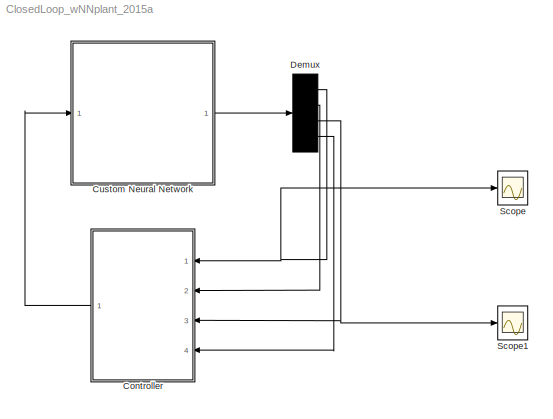
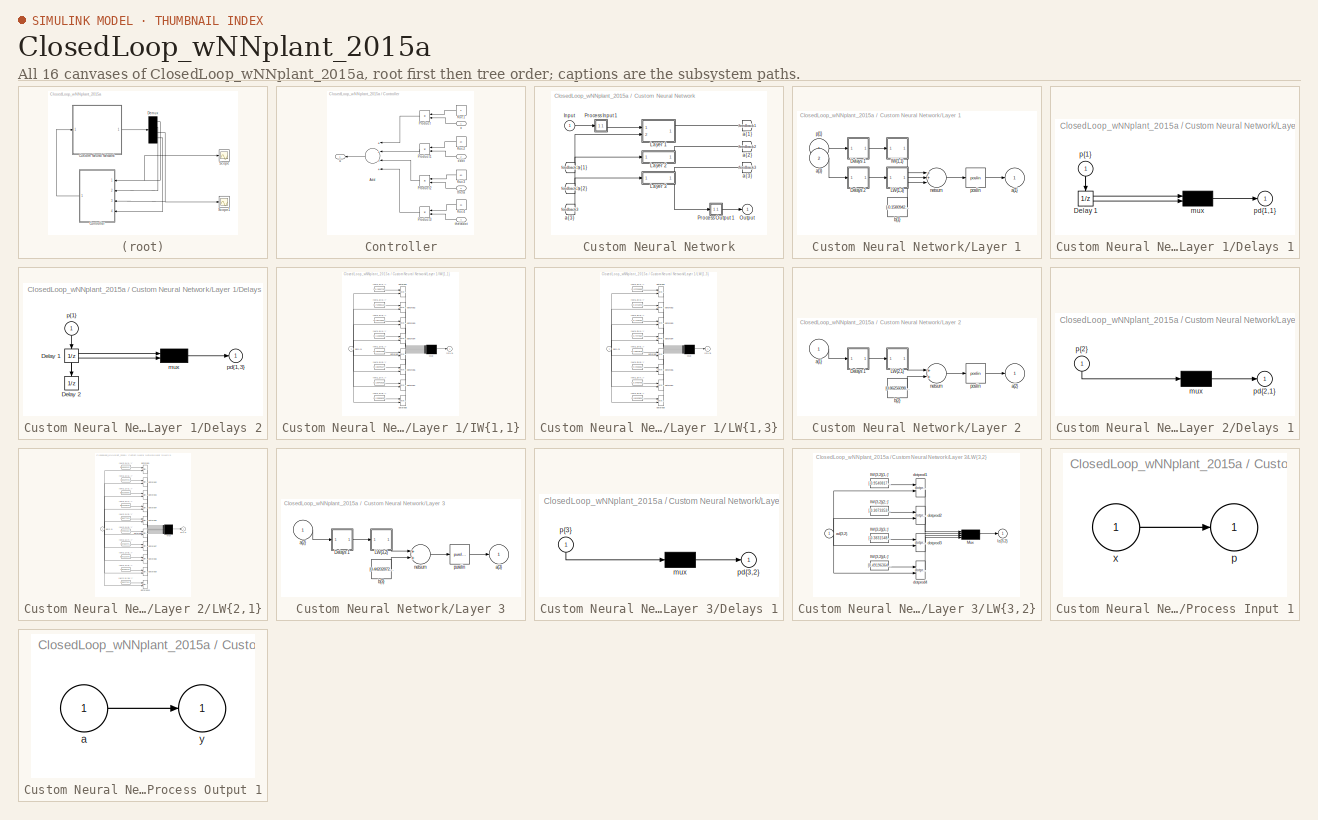
[diagram: thumbnail index - all 16 canvases of the model, root first then tree order]
MODEL ClosedLoop_wNNplant_2015a
KIND model
BLOCK [SubSystem] Controller
  Ports = [4, 1]
  RequestExecContextInheritance = off
  SID = 68
BLOCK [Sum] Controller/Add
  InputSameDT = off
  Inputs = ++++
  OutDataTypeStr = Inherit: Inherit via internal rule
  Ports = [4, 1]
  SID = 73
  SaturateOnIntegerOverflow = off
BLOCK [Constant] Controller/Ksc1
  SID = 74
  Value = 6
BLOCK [Constant] Controller/Ksc2
  SID = 75
  Value = 20
BLOCK [Constant] Controller/Ksc3
  SID = 76
  Value = 60
BLOCK [Constant] Controller/Ksc4
  SID = 77
  Value = 16
BLOCK [Product] Controller/Product
  InputSameDT = off
  OutDataTypeStr = Inherit: Inherit via internal rule
  Ports = [2, 1]
  RndMeth = Floor
  SID = 78
  SaturateOnIntegerOverflow = off
BLOCK [Product] Controller/Product1
  InputSameDT = off
  OutDataTypeStr = Inherit: Inherit via internal rule
  Ports = [2, 1]
  RndMeth = Floor
  SID = 79
  SaturateOnIntegerOverflow = off
BLOCK [Product] Controller/Product2
  InputSameDT = off
  OutDataTypeStr = Inherit: Inherit via internal rule
  Ports = [2, 1]
  RndMeth = Floor
  SID = 80
  SaturateOnIntegerOverflow = off
BLOCK [Product] Controller/Product3
  InputSameDT = off
  OutDataTypeStr = Inherit: Inherit via internal rule
  Ports = [2, 1]
  RndMeth = Floor
  SID = 81
  SaturateOnIntegerOverflow = off
BLOCK [Inport] Controller/theta
  IconDisplay = Port number
  Port = 3
  SID = 71
BLOCK [Inport] Controller/thetadot
  IconDisplay = Port number
  Port = 4
  SID = 72
BLOCK [Outport] Controller/u
  IconDisplay = Port number
  SID = 82
BLOCK [Inport] Controller/x
  IconDisplay = Port number
  SID = 69
BLOCK [Inport] Controller/xdot
  IconDisplay = Port number
  Port = 2
  SID = 70
BLOCK [SubSystem] Custom Neural Network
  Ports = [1, 1]
  RequestExecContextInheritance = off
  SID = 661
BLOCK [From] Custom Neural Network/ a{1} 
  GotoTag = feedback1
  SID = 663
BLOCK [From] Custom Neural Network/ a{2} 
  GotoTag = feedback2
  SID = 664
BLOCK [From] Custom Neural Network/ a{3} 
  GotoTag = feedback3
  SID = 665
BLOCK [Inport] Custom Neural Network/Input
  IconDisplay = Port number
  PortDimensions = 1
  SID = 662
  SampleTime = 1
BLOCK [SubSystem] Custom Neural Network/Layer 1
  Ports = [2, 1]
  RequestExecContextInheritance = off
  SID = 666
BLOCK [SubSystem] Custom Neural Network/Layer 1/Delays 1
  Ports = [1, 1]
  RequestExecContextInheritance = off
  SID = 669
BLOCK [UnitDelay] Custom Neural Network/Layer 1/Delays 1/Delay 1
  InitialCondition = pi_input_1_delayed_1
  SID = 671
BLOCK [Mux] Custom Neural Network/Layer 1/Delays 1/mux
  Inputs = 2
  Ports = [2, 1]
  SID = 672
BLOCK [Outport] Custom Neural Network/Layer 1/Delays 1/pd{1,1}
  IconDisplay = Port number
  SID = 673
BLOCK [Inport] Custom Neural Network/Layer 1/Delays 1/p{1}
  IconDisplay = Port number
  PortDimensions = 1
  SID = 670
  SampleTime = 1
BLOCK [SubSystem] Custom Neural Network/Layer 1/Delays 2
  Ports = [1, 1]
  RequestExecContextInheritance = off
  SID = 674
BLOCK [UnitDelay] Custom Neural Network/Layer 1/Delays 2/Delay 1
  InitialCondition = ai_layer_3_delayed_1
  SID = 676
BLOCK [UnitDelay] Custom Neural Network/Layer 1/Delays 2/Delay 2
  InitialCondition = ai_layer_3_delayed_2
  SID = 677
BLOCK [Mux] Custom Neural Network/Layer 1/Delays 2/mux
  Inputs = 2
  Ports = [2, 1]
  SID = 678
BLOCK [Outport] Custom Neural Network/Layer 1/Delays 2/pd{1,3}
  IconDisplay = Port number
  SID = 679
BLOCK [Inport] Custom Neural Network/Layer 1/Delays 2/p{1}
  IconDisplay = Port number
  PortDimensions = 4
  SID = 675
  SampleTime = 1
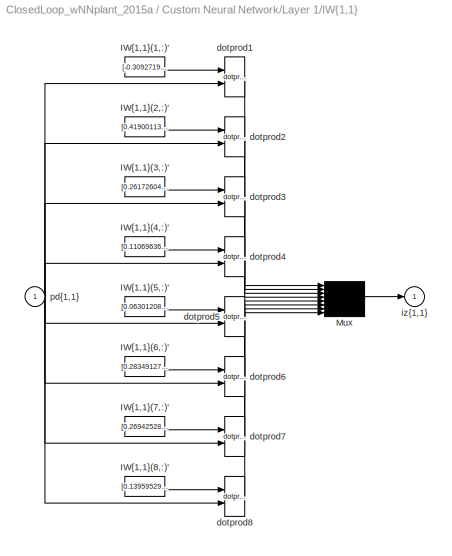
BLOCK [SubSystem] Custom Neural Network/Layer 1/IW{1,1}
  Ports = [1, 1]
  RequestExecContextInheritance = off
  SID = 680
BLOCK [Constant] Custom Neural Network/Layer 1/IW{1,1}/IW{1,1}(1,:)'
  SID = 682
  Value = [-0.3092719133139244;0.63619884507050606]
BLOCK [Constant] Custom Neural Network/Layer 1/IW{1,1}/IW{1,1}(2,:)'
  SID = 683
  Value = [0.41900113856191457;0.073872355413499236]
BLOCK [Constant] Custom Neural Network/Layer 1/IW{1,1}/IW{1,1}(3,:)'
  SID = 684
  Value = [0.26172604626713297;0.96268757352872125]
BLOCK [Constant] Custom Neural Network/Layer 1/IW{1,1}/IW{1,1}(4,:)'
  SID = 685
  Value = [0.11069636197227442;-0.87400650401458613]
BLOCK [Constant] Custom Neural Network/Layer 1/IW{1,1}/IW{1,1}(5,:)'
  SID = 686
  Value = [0.063012086048728932;0.29938314086098217]
BLOCK [Constant] Custom Neural Network/Layer 1/IW{1,1}/IW{1,1}(6,:)'
  SID = 687
  Value = [0.28349127781386013;-0.29421661731607829]
BLOCK [Constant] Custom Neural Network/Layer 1/IW{1,1}/IW{1,1}(7,:)'
  SID = 688
  Value = [0.26942528084617295;0.15438115207483905]
BLOCK [Constant] Custom Neural Network/Layer 1/IW{1,1}/IW{1,1}(8,:)'
  SID = 689
  Value = [0.13959529359642636;0.96212905830589812]
BLOCK [Mux] Custom Neural Network/Layer 1/IW{1,1}/Mux
  Inputs = 8
  Ports = [8, 1]
  SID = 690
BLOCK [Reference] Custom Neural Network/Layer 1/IW{1,1}/dotprod1  REF=neural/Weight Functions/dotprod
  Ports = [2, 1]
  SID = 691
  SourceBlock = neural/Weight Functions/dotprod
  SourceType = DOTPROD
BLOCK [Reference] Custom Neural Network/Layer 1/IW{1,1}/dotprod2  REF=neural/Weight Functions/dotprod
  Ports = [2, 1]
  SID = 692
  SourceBlock = neural/Weight Functions/dotprod
  SourceType = DOTPROD
BLOCK [Reference] Custom Neural Network/Layer 1/IW{1,1}/dotprod3  REF=neural/Weight Functions/dotprod
  Ports = [2, 1]
  SID = 693
  SourceBlock = neural/Weight Functions/dotprod
  SourceType = DOTPROD
BLOCK [Reference] Custom Neural Network/Layer 1/IW{1,1}/dotprod4  REF=neural/Weight Functions/dotprod
  Ports = [2, 1]
  SID = 694
  SourceBlock = neural/Weight Functions/dotprod
  SourceType = DOTPROD
BLOCK [Reference] Custom Neural Network/Layer 1/IW{1,1}/dotprod5  REF=neural/Weight Functions/dotprod
  Ports = [2, 1]
  SID = 695
  SourceBlock = neural/Weight Functions/dotprod
  SourceType = DOTPROD
BLOCK [Reference] Custom Neural Network/Layer 1/IW{1,1}/dotprod6  REF=neural/Weight Functions/dotprod
  Ports = [2, 1]
  SID = 696
  SourceBlock = neural/Weight Functions/dotprod
  SourceType = DOTPROD
BLOCK [Reference] Custom Neural Network/Layer 1/IW{1,1}/dotprod7  REF=neural/Weight Functions/dotprod
  Ports = [2, 1]
  SID = 697
  SourceBlock = neural/Weight Functions/dotprod
  SourceType = DOTPROD
BLOCK [Reference] Custom Neural Network/Layer 1/IW{1,1}/dotprod8  REF=neural/Weight Functions/dotprod
  Ports = [2, 1]
  SID = 698
  SourceBlock = neural/Weight Functions/dotprod
  SourceType = DOTPROD
BLOCK [Outport] Custom Neural Network/Layer 1/IW{1,1}/iz{1,1}
  IconDisplay = Port number
  SID = 699
BLOCK [Inport] Custom Neural Network/Layer 1/IW{1,1}/pd{1,1}
  IconDisplay = Port number
  PortDimensions = 2
  SID = 681
  SampleTime = 1
BLOCK [SubSystem] Custom Neural Network/Layer 1/LW{1,3}
  Ports = [1, 1]
  RequestExecContextInheritance = off
  SID = 700
BLOCK [Constant] Custom Neural Network/Layer 1/LW{1,3}/IW{1,3}(1,:)'
  SID = 702
  Value = [0.97220050918368917;0.67103382937681744;0.43868199231293925;0.96625455845649477;-0.071364069902523308;-0.25492316050428609;0.12550443194651484;-0.45123359705306565]
BLOCK [Constant] Custom Neural Network/Layer 1/LW{1,3}/IW{1,3}(2,:)'
  SID = 703
  Value = [-0.57120410982319481;0.87987218802845746;0.60210606714676618;-0.92994460981880489;0.4954562252426431;0.10832893928282994;-0.2155076519013519;-0.7543737350128934]
BLOCK [Constant] Custom Neural Network/Layer 1/LW{1,3}/IW{1,3}(3,:)'
  SID = 704
  Value = [-0.74407549130639783;-0.79005927047103541;-0.81902194878709489;-0.054689513209258189;-0.56900313122649138;-0.40892459963605066;0.11289325083050494;-0.0054499839185173649]
BLOCK [Constant] Custom Neural Network/Layer 1/LW{1,3}/IW{1,3}(4,:)'
  SID = 705
  Value = [-0.44475547433169749;0.51914429310419696;-0.076685164667499972;-0.4626762169372034;0.00023770492628183426;0.91270114018737636;0.65112591091577698;-0.46418301180882438]
BLOCK [Constant] Custom Neural Network/Layer 1/LW{1,3}/IW{1,3}(5,:)'
  SID = 706
  Value = [0.40844878771148441;0.44131386523829197;-0.12695634750354445;0.47765355340040738;0.20627658981955332;-0.15234233111858297;0.019436512863606259;0.68135339966593556]
BLOCK [Constant] Custom Neural Network/Layer 1/LW{1,3}/IW{1,3}(6,:)'
  SID = 707
  Value = [-0.34260615342761969;0.042542768002545195;0.9434960729234656;-0.0033172871201381238;-0.1515739249970165;-0.36844138018398986;-0.69088936901049669;-0.30965329076010217]
BLOCK [Constant] Custom Neural Network/Layer 1/LW{1,3}/IW{1,3}(7,:)'
  SID = 708
  Value = [-0.97597666922944915;-0.090754972637587805;-0.68437952308302008;0.39667072362624145;0.49526176758926632;-0.64634933811063022;0.045433764882324201;0.75562550576064935]
BLOCK [Constant] Custom Neural Network/Layer 1/LW{1,3}/IW{1,3}(8,:)'
  SID = 709
  Value = [0.66103824451281912;0.99601443172953763;0.98041452212581093;-0.50388195173214112;0.44042438122915706;-0.2499698533253305;-0.50334481581334223;0.3579693559727366]
BLOCK [Mux] Custom Neural Network/Layer 1/LW{1,3}/Mux
  Inputs = 8
  Ports = [8, 1]
  SID = 710
BLOCK [Inport] Custom Neural Network/Layer 1/LW{1,3}/ad{1,3}
  IconDisplay = Port number
  PortDimensions = 8
  SID = 701
  SampleTime = 1
BLOCK [Reference] Custom Neural Network/Layer 1/LW{1,3}/dotprod1  REF=neural/Weight Functions/dotprod
  Ports = [2, 1]
  SID = 711
  SourceBlock = neural/Weight Functions/dotprod
  SourceType = DOTPROD
BLOCK [Reference] Custom Neural Network/Layer 1/LW{1,3}/dotprod2  REF=neural/Weight Functions/dotprod
  Ports = [2, 1]
  SID = 712
  SourceBlock = neural/Weight Functions/dotprod
  SourceType = DOTPROD
BLOCK [Reference] Custom Neural Network/Layer 1/LW{1,3}/dotprod3  REF=neural/Weight Functions/dotprod
  Ports = [2, 1]
  SID = 713
  SourceBlock = neural/Weight Functions/dotprod
  SourceType = DOTPROD
BLOCK [Reference] Custom Neural Network/Layer 1/LW{1,3}/dotprod4  REF=neural/Weight Functions/dotprod
  Ports = [2, 1]
  SID = 714
  SourceBlock = neural/Weight Functions/dotprod
  SourceType = DOTPROD
BLOCK [Reference] Custom Neural Network/Layer 1/LW{1,3}/dotprod5  REF=neural/Weight Functions/dotprod
  Ports = [2, 1]
  SID = 715
  SourceBlock = neural/Weight Functions/dotprod
  SourceType = DOTPROD
BLOCK [Reference] Custom Neural Network/Layer 1/LW{1,3}/dotprod6  REF=neural/Weight Functions/dotprod
  Ports = [2, 1]
  SID = 716
  SourceBlock = neural/Weight Functions/dotprod
  SourceType = DOTPROD
BLOCK [Reference] Custom Neural Network/Layer 1/LW{1,3}/dotprod7  REF=neural/Weight Functions/dotprod
  Ports = [2, 1]
  SID = 717
  SourceBlock = neural/Weight Functions/dotprod
  SourceType = DOTPROD
BLOCK [Reference] Custom Neural Network/Layer 1/LW{1,3}/dotprod8  REF=neural/Weight Functions/dotprod
  Ports = [2, 1]
  SID = 718
  SourceBlock = neural/Weight Functions/dotprod
  SourceType = DOTPROD
BLOCK [Outport] Custom Neural Network/Layer 1/LW{1,3}/lz{1,3}
  IconDisplay = Port number
  SID = 719
BLOCK [Outport] Custom Neural Network/Layer 1/a{1}
  IconDisplay = Port number
  InitialOutput = [0;0;0;0;0;0;0;0]
  SID = 723
BLOCK [Inport] Custom Neural Network/Layer 1/a{3} 
  IconDisplay = Port number
  Port = 2
  PortDimensions = 4
  SID = 668
  SampleTime = 1
BLOCK [Constant] Custom Neural Network/Layer 1/b{1}
  SID = 720
  Value = [-0.15809428186417956;0.56958697696152227;-0.12643576261380884;0.059444452459192894;0.0054890385220049088;1.0954801459589227;0.6454834207828325;0.064079694404960336]
BLOCK [Sum] Custom Neural Network/Layer 1/netsum
  Inputs = 3
  Ports = [3, 1]
  SID = 721
BLOCK [Reference] Custom Neural Network/Layer 1/poslin  REF=neural/Transfer Functions/poslin
  Ports = [1, 1]
  SID = 722
  SourceBlock = neural/Transfer Functions/poslin
  SourceType = POSLIN
BLOCK [Inport] Custom Neural Network/Layer 1/p{1}
  IconDisplay = Port number
  PortDimensions = 1
  SID = 667
  SampleTime = 1
BLOCK [SubSystem] Custom Neural Network/Layer 2
  Ports = [1, 1]
  RequestExecContextInheritance = off
  SID = 724
BLOCK [SubSystem] Custom Neural Network/Layer 2/Delays 1
  Ports = [1, 1]
  RequestExecContextInheritance = off
  SID = 726
BLOCK [Mux] Custom Neural Network/Layer 2/Delays 1/mux
  Inputs = 1
  Ports = [1, 1]
  SID = 728
BLOCK [Outport] Custom Neural Network/Layer 2/Delays 1/pd{2,1}
  IconDisplay = Port number
  SID = 729
BLOCK [Inport] Custom Neural Network/Layer 2/Delays 1/p{2}
  IconDisplay = Port number
  PortDimensions = 8
  SID = 727
  SampleTime = 1
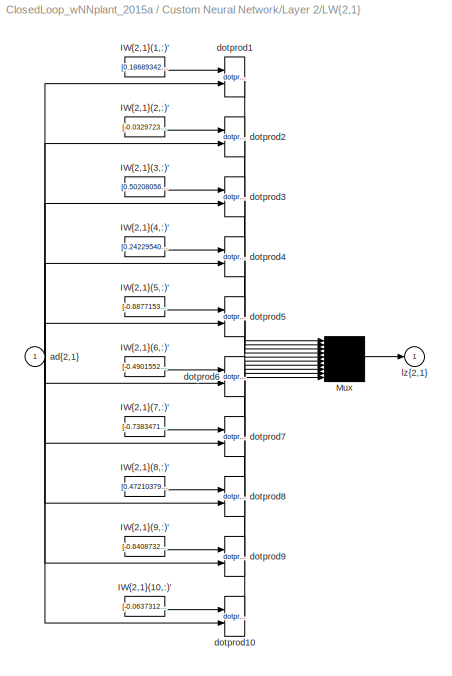
BLOCK [SubSystem] Custom Neural Network/Layer 2/LW{2,1}
  Ports = [1, 1]
  RequestExecContextInheritance = off
  SID = 730
BLOCK [Constant] Custom Neural Network/Layer 2/LW{2,1}/IW{2,1}(1,:)'
  SID = 732
  Value = [0.18689342749443164;0.73936121875770655;-0.66317066106292244;0.7445032261817397;0.38644975916223145;0.28772724222305329;-0.76565269275070491;0.17307136415255792]
BLOCK [Constant] Custom Neural Network/Layer 2/LW{2,1}/IW{2,1}(10,:)'
  SID = 733
  Value = [-0.063731258910522781;0.0053767820166072131;0.1568647369179148;-0.46420551563643858;-0.78173785008481111;1.0840624126822349;-0.96405415281190421;-0.088994697823652977]
BLOCK [Constant] Custom Neural Network/Layer 2/LW{2,1}/IW{2,1}(2,:)'
  SID = 734
  Value = [-0.032972306166946241;-0.96405726542316672;-0.044575098102519917;-0.28172554579596909;0.46080979590769156;-0.575940603180771;-0.14338956230166522;-0.10634762846446555]
BLOCK [Constant] Custom Neural Network/Layer 2/LW{2,1}/IW{2,1}(3,:)'
  SID = 735
  Value = [0.50208056600843465;-0.063331216282983674;0.1759603918829987;-0.55713795560917911;0.004558101634039885;1.0624671829772461;0.4782520781990181;-0.89187946225764825]
BLOCK [Constant] Custom Neural Network/Layer 2/LW{2,1}/IW{2,1}(4,:)'
  SID = 736
  Value = [0.24229540243649048;0.48252932682914179;0.032700500788242728;0.37293426998331108;0.6430300330673433;-0.22150314376128177;-0.23015636219559124;0.40459474713071858]
BLOCK [Constant] Custom Neural Network/Layer 2/LW{2,1}/IW{2,1}(5,:)'
  SID = 737
  Value = [-0.68771536176361647;-0.37818401678588032;-0.9956457113844781;0.57894630009481851;0.32863132674373285;-0.26035389590103986;0.26941836867493985;-0.62396900773081576]
BLOCK [Constant] Custom Neural Network/Layer 2/LW{2,1}/IW{2,1}(6,:)'
  SID = 738
  Value = [-0.49015527790666696;-0.14363278800910595;-0.99297640271198184;0.25856953853867892;0.86091628712250912;-0.97368110865202262;0.7617247365701586;-0.406557721690815]
BLOCK [Constant] Custom Neural Network/Layer 2/LW{2,1}/IW{2,1}(7,:)'
  SID = 739
  Value = [-0.73834719176306285;0.68065585294317466;-0.05468196527031232;0.06009101025893189;0.25181614905183336;0.22963495241020473;-0.65890565130287471;0.7668264110962254]
BLOCK [Constant] Custom Neural Network/Layer 2/LW{2,1}/IW{2,1}(8,:)'
  SID = 740
  Value = [0.47210379858117063;0.66217065106754003;-0.67379713816605324;0.045411332546730403;0.33441462271192945;0.78943613150104641;0.14321467629300044;0.18487707081847071]
BLOCK [Constant] Custom Neural Network/Layer 2/LW{2,1}/IW{2,1}(9,:)'
  SID = 741
  Value = [-0.6408732621706561;-0.5241286652990278;0.03661696135554493;-0.26692154715647848;-0.9103311008202154;0.22296721429100549;0.56360461384323057;-0.77820284207180046]
BLOCK [Mux] Custom Neural Network/Layer 2/LW{2,1}/Mux
  Inputs = 10
  Ports = [10, 1]
  SID = 742
BLOCK [Inport] Custom Neural Network/Layer 2/LW{2,1}/ad{2,1}
  IconDisplay = Port number
  PortDimensions = 8
  SID = 731
  SampleTime = 1
BLOCK [Reference] Custom Neural Network/Layer 2/LW{2,1}/dotprod1  REF=neural/Weight Functions/dotprod
  Ports = [2, 1]
  SID = 743
  SourceBlock = neural/Weight Functions/dotprod
  SourceType = DOTPROD
BLOCK [Reference] Custom Neural Network/Layer 2/LW{2,1}/dotprod10  REF=neural/Weight Functions/dotprod
  Ports = [2, 1]
  SID = 744
  SourceBlock = neural/Weight Functions/dotprod
  SourceType = DOTPROD
BLOCK [Reference] Custom Neural Network/Layer 2/LW{2,1}/dotprod2  REF=neural/Weight Functions/dotprod
  Ports = [2, 1]
  SID = 745
  SourceBlock = neural/Weight Functions/dotprod
  SourceType = DOTPROD
BLOCK [Reference] Custom Neural Network/Layer 2/LW{2,1}/dotprod3  REF=neural/Weight Functions/dotprod
  Ports = [2, 1]
  SID = 746
  SourceBlock = neural/Weight Functions/dotprod
  SourceType = DOTPROD
BLOCK [Reference] Custom Neural Network/Layer 2/LW{2,1}/dotprod4  REF=neural/Weight Functions/dotprod
  Ports = [2, 1]
  SID = 747
  SourceBlock = neural/Weight Functions/dotprod
  SourceType = DOTPROD
BLOCK [Reference] Custom Neural Network/Layer 2/LW{2,1}/dotprod5  REF=neural/Weight Functions/dotprod
  Ports = [2, 1]
  SID = 748
  SourceBlock = neural/Weight Functions/dotprod
  SourceType = DOTPROD
BLOCK [Reference] Custom Neural Network/Layer 2/LW{2,1}/dotprod6  REF=neural/Weight Functions/dotprod
  Ports = [2, 1]
  SID = 749
  SourceBlock = neural/Weight Functions/dotprod
  SourceType = DOTPROD
BLOCK [Reference] Custom Neural Network/Layer 2/LW{2,1}/dotprod7  REF=neural/Weight Functions/dotprod
  Ports = [2, 1]
  SID = 750
  SourceBlock = neural/Weight Functions/dotprod
  SourceType = DOTPROD
BLOCK [Reference] Custom Neural Network/Layer 2/LW{2,1}/dotprod8  REF=neural/Weight Functions/dotprod
  Ports = [2, 1]
  SID = 751
  SourceBlock = neural/Weight Functions/dotprod
  SourceType = DOTPROD
BLOCK [Reference] Custom Neural Network/Layer 2/LW{2,1}/dotprod9  REF=neural/Weight Functions/dotprod
  Ports = [2, 1]
  SID = 752
  SourceBlock = neural/Weight Functions/dotprod
  SourceType = DOTPROD
BLOCK [Outport] Custom Neural Network/Layer 2/LW{2,1}/lz{2,1}
  IconDisplay = Port number
  SID = 753
BLOCK [Inport] Custom Neural Network/Layer 2/a{1} 
  IconDisplay = Port number
  PortDimensions = 8
  SID = 725
  SampleTime = 1
BLOCK [Outport] Custom Neural Network/Layer 2/a{2}
  IconDisplay = Port number
  InitialOutput = [0;0;0;0;0;0;0;0;0;0]
  SID = 757
BLOCK [Constant] Custom Neural Network/Layer 2/b{2}
  SID = 754
  Value = [0.86256098080305332;-0.14757320692636844;0.40767747693780115;-0.71623235137101882;-0.076718225047567756;0.50269766773970526;-0.67283903688872593;0.002050817927711186;-0.30648802249570339;-0.54276688629087122]
BLOCK [Sum] Custom Neural Network/Layer 2/netsum
  Inputs = 2
  Ports = [2, 1]
  SID = 755
BLOCK [Reference] Custom Neural Network/Layer 2/poslin  REF=neural/Transfer Functions/poslin
  Ports = [1, 1]
  SID = 756
  SourceBlock = neural/Transfer Functions/poslin
  SourceType = POSLIN
BLOCK [SubSystem] Custom Neural Network/Layer 3
  Ports = [1, 1]
  RequestExecContextInheritance = off
  SID = 758
BLOCK [SubSystem] Custom Neural Network/Layer 3/Delays 1
  Ports = [1, 1]
  RequestExecContextInheritance = off
  SID = 760
BLOCK [Mux] Custom Neural Network/Layer 3/Delays 1/mux
  Inputs = 1
  Ports = [1, 1]
  SID = 762
BLOCK [Outport] Custom Neural Network/Layer 3/Delays 1/pd{3,2}
  IconDisplay = Port number
  SID = 763
BLOCK [Inport] Custom Neural Network/Layer 3/Delays 1/p{3}
  IconDisplay = Port number
  PortDimensions = 10
  SID = 761
  SampleTime = 1
BLOCK [SubSystem] Custom Neural Network/Layer 3/LW{3,2}
  Ports = [1, 1]
  RequestExecContextInheritance = off
  SID = 764
BLOCK [Constant] Custom Neural Network/Layer 3/LW{3,2}/IW{3,2}(1,:)'
  SID = 766
  Value = [-0.9540817502104707;0.43315094121606013;0.66952832723160149;-0.65671800042403972;0.97622922642903442;0.42641003633279806;0.96404832384763939;-0.37540951633284697;-0.17465148332055877;0.72832531579192406]
BLOCK [Constant] Custom Neural Network/Layer 3/LW{3,2}/IW{3,2}(2,:)'
  SID = 767
  Value = [-0.30733530319233004;-0.62119480941063432;0.19977777078550354;-0.82844921550076367;0.17315379663633568;-0.020970229237871802;-0.23058556556911491;0.40892396007085352;-0.53941024028570639;-0.32190412703372967]
BLOCK [Constant] Custom Neural Network/Layer 3/LW{3,2}/IW{3,2}(3,:)'
  SID = 768
  Value = [-0.38315486381752284;-0.26705942774753333;-0.13069871102209782;-0.11392183428513127;0.70040727714020101;0.11557902441795251;0.098690584003112647;0.23878900720587348;0.39310468302979756;-0.77368032714003365]
BLOCK [Constant] Custom Neural Network/Layer 3/LW{3,2}/IW{3,2}(4,:)'
  SID = 769
  Value = [0.49196364815775323;0.47457394972776301;-1.1295197412878653;1.6632453795631197;-0.88899585825638416;-0.30297251061683661;-0.38340889050599281;0.15054000868947251;-0.90523674904439966;0.34376475327587741]
BLOCK [Mux] Custom Neural Network/Layer 3/LW{3,2}/Mux
  Ports = [4, 1]
  SID = 770
BLOCK [Inport] Custom Neural Network/Layer 3/LW{3,2}/ad{3,2}
  IconDisplay = Port number
  PortDimensions = 10
  SID = 765
  SampleTime = 1
BLOCK [Reference] Custom Neural Network/Layer 3/LW{3,2}/dotprod1  REF=neural/Weight Functions/dotprod
  Ports = [2, 1]
  SID = 771
  SourceBlock = neural/Weight Functions/dotprod
  SourceType = DOTPROD
BLOCK [Reference] Custom Neural Network/Layer 3/LW{3,2}/dotprod2  REF=neural/Weight Functions/dotprod
  Ports = [2, 1]
  SID = 772
  SourceBlock = neural/Weight Functions/dotprod
  SourceType = DOTPROD
BLOCK [Reference] Custom Neural Network/Layer 3/LW{3,2}/dotprod3  REF=neural/Weight Functions/dotprod
  Ports = [2, 1]
  SID = 773
  SourceBlock = neural/Weight Functions/dotprod
  SourceType = DOTPROD
BLOCK [Reference] Custom Neural Network/Layer 3/LW{3,2}/dotprod4  REF=neural/Weight Functions/dotprod
  Ports = [2, 1]
  SID = 774
  SourceBlock = neural/Weight Functions/dotprod
  SourceType = DOTPROD
BLOCK [Outport] Custom Neural Network/Layer 3/LW{3,2}/lz{3,2}
  IconDisplay = Port number
  SID = 775
BLOCK [Inport] Custom Neural Network/Layer 3/a{2} 
  IconDisplay = Port number
  PortDimensions = 10
  SID = 759
  SampleTime = 1
BLOCK [Outport] Custom Neural Network/Layer 3/a{3}
  IconDisplay = Port number
  InitialOutput = [0;0;0;0]
  SID = 779
BLOCK [Constant] Custom Neural Network/Layer 3/b{3}
  SID = 776
  Value = [0.44202872183057873;-0.54677728776436341;0.35172742245410327;1.2056339074916673]
BLOCK [Sum] Custom Neural Network/Layer 3/netsum
  Inputs = 2
  Ports = [2, 1]
  SID = 777
BLOCK [Reference] Custom Neural Network/Layer 3/purelin  REF=neural/Transfer Functions/purelin
  Ports = [1, 1]
  SID = 778
  SourceBlock = neural/Transfer Functions/purelin
  SourceType = PURELIN
BLOCK [Outport] Custom Neural Network/Output
  IconDisplay = Port number
  InitialOutput = [0;0;0;0]
  SID = 789
BLOCK [SubSystem] Custom Neural Network/Process Input 1
  Ports = [1, 1]
  RequestExecContextInheritance = off
  SID = 780
BLOCK [Outport] Custom Neural Network/Process Input 1/p
  IconDisplay = Port number
  PortDimensions = 1
  SID = 782
  SampleTime = 1
BLOCK [Inport] Custom Neural Network/Process Input 1/x
  IconDisplay = Port number
  PortDimensions = 1
  SID = 781
  SampleTime = 1
BLOCK [SubSystem] Custom Neural Network/Process Output 1
  Ports = [1, 1]
  RequestExecContextInheritance = off
  SID = 783
BLOCK [Inport] Custom Neural Network/Process Output 1/a
  IconDisplay = Port number
  PortDimensions = 4
  SID = 784
  SampleTime = 1
BLOCK [Outport] Custom Neural Network/Process Output 1/y
  IconDisplay = Port number
  PortDimensions = 4
  SID = 785
  SampleTime = 1
BLOCK [Goto] Custom Neural Network/a{1}
  GotoTag = feedback1
  SID = 786
BLOCK [Goto] Custom Neural Network/a{2}
  GotoTag = feedback2
  SID = 787
BLOCK [Goto] Custom Neural Network/a{3}
  GotoTag = feedback3
  SID = 788
BLOCK [Demux] Demux
  DisplayOption = bar
  Ports = [1, 4]
  SID = 83
BLOCK [Scope] Scope
  DataFormat = StructureWithTime
  Decimation = 1
  Floating = off
  Grid = on
  LimitDataPoints = off
  MaxDataPoints = 5000
  NumInputPorts = 1
  Ports = [1]
  SID = 260
  SampleInput = off
  SampleTime = -1
  SaveName = ScopeData
  SaveToWorkspace = off
  ShowLegends = on
  TickLabels = OneTimeTick
  TimeRange = auto
  YMax = -1.32106
  YMin = -1.32154
  ZoomMode = on
BLOCK [Scope] Scope1
  DataFormat = StructureWithTime
  Decimation = 1
  Floating = off
  Grid = on
  LimitDataPoints = off
  MaxDataPoints = 5000
  NumInputPorts = 1
  Ports = [1]
  SID = 261
  SampleInput = off
  SampleTime = -1
  SaveName = ScopeData1
  SaveToWorkspace = off
  ShowLegends = on
  TickLabels = OneTimeTick
  TimeRange = auto
  YMax = 1.16033
  YMin = -14.8544
  ZoomMode = on
LINE Controller/Add:1 -> Controller/u:1
LINE Controller/Ksc1:1 -> Controller/Product:1
LINE Controller/Ksc2:1 -> Controller/Product1:1
LINE Controller/Ksc3:1 -> Controller/Product2:1
LINE Controller/Ksc4:1 -> Controller/Product3:1
LINE Controller/Product1:1 -> Controller/Add:2
LINE Controller/Product2:1 -> Controller/Add:3
LINE Controller/Product3:1 -> Controller/Add:4
LINE Controller/Product:1 -> Controller/Add:1
LINE Controller/theta:1 -> Controller/Product2:2
LINE Controller/thetadot:1 -> Controller/Product3:2
LINE Controller/x:1 -> Controller/Product:2
LINE Controller/xdot:1 -> Controller/Product1:2
LINE Controller:1 -> Custom Neural Network:1
LINE Custom Neural Network/ a{1} :1 -> Custom Neural Network/Layer 2:1
LINE Custom Neural Network/ a{2} :1 -> Custom Neural Network/Layer 3:1
LINE Custom Neural Network/ a{3} :1 -> Custom Neural Network/Layer 1:2
LINE Custom Neural Network/Input:1 -> Custom Neural Network/Process Input 1:1
LINE Custom Neural Network/Layer 1/Delays 1/Delay 1:1 -> Custom Neural Network/Layer 1/Delays 1/mux:2
LINE Custom Neural Network/Layer 1/Delays 1/mux:1 -> Custom Neural Network/Layer 1/Delays 1/pd{1,1}:1
NET Custom Neural Network/Layer 1/Delays 1/p{1}:1 -> Custom Neural Network/Layer 1/Delays 1/Delay 1:1, Custom Neural Network/Layer 1/Delays 1/mux:1
LINE Custom Neural Network/Layer 1/Delays 1:1 -> Custom Neural Network/Layer 1/IW{1,1}:1
NET Custom Neural Network/Layer 1/Delays 2/Delay 1:1 -> Custom Neural Network/Layer 1/Delays 2/Delay 2:1, Custom Neural Network/Layer 1/Delays 2/mux:1
LINE Custom Neural Network/Layer 1/Delays 2/Delay 2:1 -> Custom Neural Network/Layer 1/Delays 2/mux:2
LINE Custom Neural Network/Layer 1/Delays 2/mux:1 -> Custom Neural Network/Layer 1/Delays 2/pd{1,3}:1
LINE Custom Neural Network/Layer 1/Delays 2/p{1}:1 -> Custom Neural Network/Layer 1/Delays 2/Delay 1:1
LINE Custom Neural Network/Layer 1/Delays 2:1 -> Custom Neural Network/Layer 1/LW{1,3}:1
LINE Custom Neural Network/Layer 1/IW{1,1}/IW{1,1}(1,:)':1 -> Custom Neural Network/Layer 1/IW{1,1}/dotprod1:1
LINE Custom Neural Network/Layer 1/IW{1,1}/IW{1,1}(2,:)':1 -> Custom Neural Network/Layer 1/IW{1,1}/dotprod2:1
LINE Custom Neural Network/Layer 1/IW{1,1}/IW{1,1}(3,:)':1 -> Custom Neural Network/Layer 1/IW{1,1}/dotprod3:1
LINE Custom Neural Network/Layer 1/IW{1,1}/IW{1,1}(4,:)':1 -> Custom Neural Network/Layer 1/IW{1,1}/dotprod4:1
LINE Custom Neural Network/Layer 1/IW{1,1}/IW{1,1}(5,:)':1 -> Custom Neural Network/Layer 1/IW{1,1}/dotprod5:1
LINE Custom Neural Network/Layer 1/IW{1,1}/IW{1,1}(6,:)':1 -> Custom Neural Network/Layer 1/IW{1,1}/dotprod6:1
LINE Custom Neural Network/Layer 1/IW{1,1}/IW{1,1}(7,:)':1 -> Custom Neural Network/Layer 1/IW{1,1}/dotprod7:1
LINE Custom Neural Network/Layer 1/IW{1,1}/IW{1,1}(8,:)':1 -> Custom Neural Network/Layer 1/IW{1,1}/dotprod8:1
LINE Custom Neural Network/Layer 1/IW{1,1}/Mux:1 -> Custom Neural Network/Layer 1/IW{1,1}/iz{1,1}:1
LINE Custom Neural Network/Layer 1/IW{1,1}/dotprod1:1 -> Custom Neural Network/Layer 1/IW{1,1}/Mux:1
LINE Custom Neural Network/Layer 1/IW{1,1}/dotprod2:1 -> Custom Neural Network/Layer 1/IW{1,1}/Mux:2
LINE Custom Neural Network/Layer 1/IW{1,1}/dotprod3:1 -> Custom Neural Network/Layer 1/IW{1,1}/Mux:3
LINE Custom Neural Network/Layer 1/IW{1,1}/dotprod4:1 -> Custom Neural Network/Layer 1/IW{1,1}/Mux:4
LINE Custom Neural Network/Layer 1/IW{1,1}/dotprod5:1 -> Custom Neural Network/Layer 1/IW{1,1}/Mux:5
LINE Custom Neural Network/Layer 1/IW{1,1}/dotprod6:1 -> Custom Neural Network/Layer 1/IW{1,1}/Mux:6
LINE Custom Neural Network/Layer 1/IW{1,1}/dotprod7:1 -> Custom Neural Network/Layer 1/IW{1,1}/Mux:7
LINE Custom Neural Network/Layer 1/IW{1,1}/dotprod8:1 -> Custom Neural Network/Layer 1/IW{1,1}/Mux:8
NET Custom Neural Network/Layer 1/IW{1,1}/pd{1,1}:1 -> Custom Neural Network/Layer 1/IW{1,1}/dotprod1:2, Custom Neural Network/Layer 1/IW{1,1}/dotprod2:2, Custom Neural Network/Layer 1/IW{1,1}/dotprod3:2, Custom Neural Network/Layer 1/IW{1,1}/dotprod4:2, Custom Neural Network/Layer 1/IW{1,1}/dotprod5:2, Custom Neural Network/Layer 1/IW{1,1}/dotprod6:2, Custom Neural Network/Layer 1/IW{1,1}/dotprod7:2, Custom Neural Network/Layer 1/IW{1,1}/dotprod8:2
LINE Custom Neural Network/Layer 1/IW{1,1}:1 -> Custom Neural Network/Layer 1/netsum:1
LINE Custom Neural Network/Layer 1/LW{1,3}/IW{1,3}(1,:)':1 -> Custom Neural Network/Layer 1/LW{1,3}/dotprod1:1
LINE Custom Neural Network/Layer 1/LW{1,3}/IW{1,3}(2,:)':1 -> Custom Neural Network/Layer 1/LW{1,3}/dotprod2:1
LINE Custom Neural Network/Layer 1/LW{1,3}/IW{1,3}(3,:)':1 -> Custom Neural Network/Layer 1/LW{1,3}/dotprod3:1
LINE Custom Neural Network/Layer 1/LW{1,3}/IW{1,3}(4,:)':1 -> Custom Neural Network/Layer 1/LW{1,3}/dotprod4:1
LINE Custom Neural Network/Layer 1/LW{1,3}/IW{1,3}(5,:)':1 -> Custom Neural Network/Layer 1/LW{1,3}/dotprod5:1
LINE Custom Neural Network/Layer 1/LW{1,3}/IW{1,3}(6,:)':1 -> Custom Neural Network/Layer 1/LW{1,3}/dotprod6:1
LINE Custom Neural Network/Layer 1/LW{1,3}/IW{1,3}(7,:)':1 -> Custom Neural Network/Layer 1/LW{1,3}/dotprod7:1
LINE Custom Neural Network/Layer 1/LW{1,3}/IW{1,3}(8,:)':1 -> Custom Neural Network/Layer 1/LW{1,3}/dotprod8:1
LINE Custom Neural Network/Layer 1/LW{1,3}/Mux:1 -> Custom Neural Network/Layer 1/LW{1,3}/lz{1,3}:1
NET Custom Neural Network/Layer 1/LW{1,3}/ad{1,3}:1 -> Custom Neural Network/Layer 1/LW{1,3}/dotprod1:2, Custom Neural Network/Layer 1/LW{1,3}/dotprod2:2, Custom Neural Network/Layer 1/LW{1,3}/dotprod3:2, Custom Neural Network/Layer 1/LW{1,3}/dotprod4:2, Custom Neural Network/Layer 1/LW{1,3}/dotprod5:2, Custom Neural Network/Layer 1/LW{1,3}/dotprod6:2, Custom Neural Network/Layer 1/LW{1,3}/dotprod7:2, Custom Neural Network/Layer 1/LW{1,3}/dotprod8:2
LINE Custom Neural Network/Layer 1/LW{1,3}/dotprod1:1 -> Custom Neural Network/Layer 1/LW{1,3}/Mux:1
LINE Custom Neural Network/Layer 1/LW{1,3}/dotprod2:1 -> Custom Neural Network/Layer 1/LW{1,3}/Mux:2
LINE Custom Neural Network/Layer 1/LW{1,3}/dotprod3:1 -> Custom Neural Network/Layer 1/LW{1,3}/Mux:3
LINE Custom Neural Network/Layer 1/LW{1,3}/dotprod4:1 -> Custom Neural Network/Layer 1/LW{1,3}/Mux:4
LINE Custom Neural Network/Layer 1/LW{1,3}/dotprod5:1 -> Custom Neural Network/Layer 1/LW{1,3}/Mux:5
LINE Custom Neural Network/Layer 1/LW{1,3}/dotprod6:1 -> Custom Neural Network/Layer 1/LW{1,3}/Mux:6
LINE Custom Neural Network/Layer 1/LW{1,3}/dotprod7:1 -> Custom Neural Network/Layer 1/LW{1,3}/Mux:7
LINE Custom Neural Network/Layer 1/LW{1,3}/dotprod8:1 -> Custom Neural Network/Layer 1/LW{1,3}/Mux:8
LINE Custom Neural Network/Layer 1/LW{1,3}:1 -> Custom Neural Network/Layer 1/netsum:2
LINE Custom Neural Network/Layer 1/a{3} :1 -> Custom Neural Network/Layer 1/Delays 2:1
LINE Custom Neural Network/Layer 1/b{1}:1 -> Custom Neural Network/Layer 1/netsum:3
LINE Custom Neural Network/Layer 1/netsum:1 -> Custom Neural Network/Layer 1/poslin:1
LINE Custom Neural Network/Layer 1/poslin:1 -> Custom Neural Network/Layer 1/a{1}:1
LINE Custom Neural Network/Layer 1/p{1}:1 -> Custom Neural Network/Layer 1/Delays 1:1
LINE Custom Neural Network/Layer 1:1 -> Custom Neural Network/a{1}:1
LINE Custom Neural Network/Layer 2/Delays 1/mux:1 -> Custom Neural Network/Layer 2/Delays 1/pd{2,1}:1
LINE Custom Neural Network/Layer 2/Delays 1/p{2}:1 -> Custom Neural Network/Layer 2/Delays 1/mux:1
LINE Custom Neural Network/Layer 2/Delays 1:1 -> Custom Neural Network/Layer 2/LW{2,1}:1
LINE Custom Neural Network/Layer 2/LW{2,1}/IW{2,1}(1,:)':1 -> Custom Neural Network/Layer 2/LW{2,1}/dotprod1:1
LINE Custom Neural Network/Layer 2/LW{2,1}/IW{2,1}(10,:)':1 -> Custom Neural Network/Layer 2/LW{2,1}/dotprod10:1
LINE Custom Neural Network/Layer 2/LW{2,1}/IW{2,1}(2,:)':1 -> Custom Neural Network/Layer 2/LW{2,1}/dotprod2:1
LINE Custom Neural Network/Layer 2/LW{2,1}/IW{2,1}(3,:)':1 -> Custom Neural Network/Layer 2/LW{2,1}/dotprod3:1
LINE Custom Neural Network/Layer 2/LW{2,1}/IW{2,1}(4,:)':1 -> Custom Neural Network/Layer 2/LW{2,1}/dotprod4:1
LINE Custom Neural Network/Layer 2/LW{2,1}/IW{2,1}(5,:)':1 -> Custom Neural Network/Layer 2/LW{2,1}/dotprod5:1
LINE Custom Neural Network/Layer 2/LW{2,1}/IW{2,1}(6,:)':1 -> Custom Neural Network/Layer 2/LW{2,1}/dotprod6:1
LINE Custom Neural Network/Layer 2/LW{2,1}/IW{2,1}(7,:)':1 -> Custom Neural Network/Layer 2/LW{2,1}/dotprod7:1
LINE Custom Neural Network/Layer 2/LW{2,1}/IW{2,1}(8,:)':1 -> Custom Neural Network/Layer 2/LW{2,1}/dotprod8:1
LINE Custom Neural Network/Layer 2/LW{2,1}/IW{2,1}(9,:)':1 -> Custom Neural Network/Layer 2/LW{2,1}/dotprod9:1
LINE Custom Neural Network/Layer 2/LW{2,1}/Mux:1 -> Custom Neural Network/Layer 2/LW{2,1}/lz{2,1}:1
NET Custom Neural Network/Layer 2/LW{2,1}/ad{2,1}:1 -> Custom Neural Network/Layer 2/LW{2,1}/dotprod10:2, Custom Neural Network/Layer 2/LW{2,1}/dotprod1:2, Custom Neural Network/Layer 2/LW{2,1}/dotprod2:2, Custom Neural Network/Layer 2/LW{2,1}/dotprod3:2, Custom Neural Network/Layer 2/LW{2,1}/dotprod4:2, Custom Neural Network/Layer 2/LW{2,1}/dotprod5:2, Custom Neural Network/Layer 2/LW{2,1}/dotprod6:2, Custom Neural Network/Layer 2/LW{2,1}/dotprod7:2, Custom Neural Network/Layer 2/LW{2,1}/dotprod8:2, Custom Neural Network/Layer 2/LW{2,1}/dotprod9:2
LINE Custom Neural Network/Layer 2/LW{2,1}/dotprod10:1 -> Custom Neural Network/Layer 2/LW{2,1}/Mux:10
LINE Custom Neural Network/Layer 2/LW{2,1}/dotprod1:1 -> Custom Neural Network/Layer 2/LW{2,1}/Mux:1
LINE Custom Neural Network/Layer 2/LW{2,1}/dotprod2:1 -> Custom Neural Network/Layer 2/LW{2,1}/Mux:2
LINE Custom Neural Network/Layer 2/LW{2,1}/dotprod3:1 -> Custom Neural Network/Layer 2/LW{2,1}/Mux:3
LINE Custom Neural Network/Layer 2/LW{2,1}/dotprod4:1 -> Custom Neural Network/Layer 2/LW{2,1}/Mux:4
LINE Custom Neural Network/Layer 2/LW{2,1}/dotprod5:1 -> Custom Neural Network/Layer 2/LW{2,1}/Mux:5
LINE Custom Neural Network/Layer 2/LW{2,1}/dotprod6:1 -> Custom Neural Network/Layer 2/LW{2,1}/Mux:6
LINE Custom Neural Network/Layer 2/LW{2,1}/dotprod7:1 -> Custom Neural Network/Layer 2/LW{2,1}/Mux:7
LINE Custom Neural Network/Layer 2/LW{2,1}/dotprod8:1 -> Custom Neural Network/Layer 2/LW{2,1}/Mux:8
LINE Custom Neural Network/Layer 2/LW{2,1}/dotprod9:1 -> Custom Neural Network/Layer 2/LW{2,1}/Mux:9
LINE Custom Neural Network/Layer 2/LW{2,1}:1 -> Custom Neural Network/Layer 2/netsum:1
LINE Custom Neural Network/Layer 2/a{1} :1 -> Custom Neural Network/Layer 2/Delays 1:1
LINE Custom Neural Network/Layer 2/b{2}:1 -> Custom Neural Network/Layer 2/netsum:2
LINE Custom Neural Network/Layer 2/netsum:1 -> Custom Neural Network/Layer 2/poslin:1
LINE Custom Neural Network/Layer 2/poslin:1 -> Custom Neural Network/Layer 2/a{2}:1
LINE Custom Neural Network/Layer 2:1 -> Custom Neural Network/a{2}:1
LINE Custom Neural Network/Layer 3/Delays 1/mux:1 -> Custom Neural Network/Layer 3/Delays 1/pd{3,2}:1
LINE Custom Neural Network/Layer 3/Delays 1/p{3}:1 -> Custom Neural Network/Layer 3/Delays 1/mux:1
LINE Custom Neural Network/Layer 3/Delays 1:1 -> Custom Neural Network/Layer 3/LW{3,2}:1
LINE Custom Neural Network/Layer 3/LW{3,2}/IW{3,2}(1,:)':1 -> Custom Neural Network/Layer 3/LW{3,2}/dotprod1:1
LINE Custom Neural Network/Layer 3/LW{3,2}/IW{3,2}(2,:)':1 -> Custom Neural Network/Layer 3/LW{3,2}/dotprod2:1
LINE Custom Neural Network/Layer 3/LW{3,2}/IW{3,2}(3,:)':1 -> Custom Neural Network/Layer 3/LW{3,2}/dotprod3:1
LINE Custom Neural Network/Layer 3/LW{3,2}/IW{3,2}(4,:)':1 -> Custom Neural Network/Layer 3/LW{3,2}/dotprod4:1
LINE Custom Neural Network/Layer 3/LW{3,2}/Mux:1 -> Custom Neural Network/Layer 3/LW{3,2}/lz{3,2}:1
NET Custom Neural Network/Layer 3/LW{3,2}/ad{3,2}:1 -> Custom Neural Network/Layer 3/LW{3,2}/dotprod1:2, Custom Neural Network/Layer 3/LW{3,2}/dotprod2:2, Custom Neural Network/Layer 3/LW{3,2}/dotprod3:2, Custom Neural Network/Layer 3/LW{3,2}/dotprod4:2
LINE Custom Neural Network/Layer 3/LW{3,2}/dotprod1:1 -> Custom Neural Network/Layer 3/LW{3,2}/Mux:1
LINE Custom Neural Network/Layer 3/LW{3,2}/dotprod2:1 -> Custom Neural Network/Layer 3/LW{3,2}/Mux:2
LINE Custom Neural Network/Layer 3/LW{3,2}/dotprod3:1 -> Custom Neural Network/Layer 3/LW{3,2}/Mux:3
LINE Custom Neural Network/Layer 3/LW{3,2}/dotprod4:1 -> Custom Neural Network/Layer 3/LW{3,2}/Mux:4
LINE Custom Neural Network/Layer 3/LW{3,2}:1 -> Custom Neural Network/Layer 3/netsum:1
LINE Custom Neural Network/Layer 3/a{2} :1 -> Custom Neural Network/Layer 3/Delays 1:1
LINE Custom Neural Network/Layer 3/b{3}:1 -> Custom Neural Network/Layer 3/netsum:2
LINE Custom Neural Network/Layer 3/netsum:1 -> Custom Neural Network/Layer 3/purelin:1
LINE Custom Neural Network/Layer 3/purelin:1 -> Custom Neural Network/Layer 3/a{3}:1
NET Custom Neural Network/Layer 3:1 -> Custom Neural Network/Process Output 1:1, Custom Neural Network/a{3}:1
LINE Custom Neural Network/Process Input 1/x:1 -> Custom Neural Network/Process Input 1/p:1
LINE Custom Neural Network/Process Input 1:1 -> Custom Neural Network/Layer 1:1
LINE Custom Neural Network/Process Output 1/a:1 -> Custom Neural Network/Process Output 1/y:1
LINE Custom Neural Network/Process Output 1:1 -> Custom Neural Network/Output:1
LINE Custom Neural Network:1 -> Demux:1
NET Demux:1 -> Controller:1, Scope:1
LINE Demux:2 -> Controller:2
NET Demux:3 -> Controller:3, Scope1:1
LINE Demux:4 -> Controller:4
note: NET lines group one-source signal fan-out (src -> all destinations, sorted); 1:1 wires keep LINE
